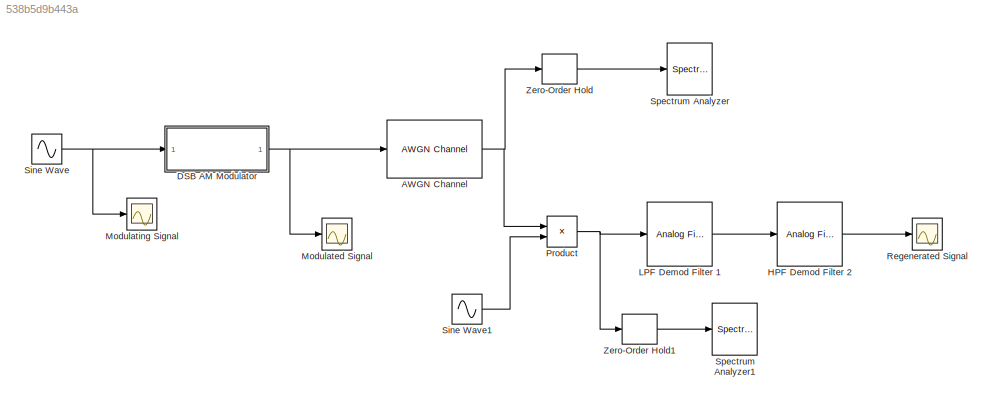
MODEL slx_538b5d9b443a
KIND model
CONFIG AbsTol = auto
CONFIG EnableMultiTasking = off
CONFIG FixedStep = auto
CONFIG MaxStep = auto
CONFIG MinStep = auto
CONFIG RelTol = 1e-3
CONFIG SampleTimeConstraint = Unconstrained
CONFIG Solver = VariableStepAuto
CONFIG SolverName = VariableStepAuto
CONFIG StartTime = 0.0
CONFIG StopTime = 1
BLOCK [Reference] AWGN Channel  REF=commchan3/AWGN
Channel
  Ports = [1, 1]
  SourceBlock = commchan3/AWGN\nChannel
  SourceProductBaseCode = CM
  SourceProductName = Communications System Toolbox
  SourceType = AWGN Channel
  UserDataPersistent = on
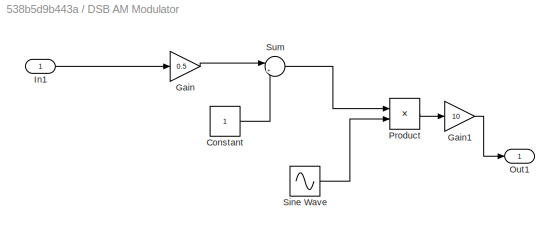
BLOCK [SubSystem] DSB AM Modulator
  Ports = [1, 1]
  RequestExecContextInheritance = off
BLOCK [Constant] DSB AM Modulator/Constant
BLOCK [Gain] DSB AM Modulator/Gain
  Gain = 0.5
  OutDataTypeStr = Inherit: Inherit via internal rule
  ParamDataTypeStr = Inherit: Inherit via internal rule
  SaturateOnIntegerOverflow = off
BLOCK [Gain] DSB AM Modulator/Gain1
  Gain = 10
  OutDataTypeStr = Inherit: Inherit via internal rule
  ParamDataTypeStr = Inherit: Inherit via internal rule
  SaturateOnIntegerOverflow = off
BLOCK [Inport] DSB AM Modulator/In1
  IconDisplay = Port number
BLOCK [Outport] DSB AM Modulator/Out1
  IconDisplay = Port number
BLOCK [Product] DSB AM Modulator/Product
  InputSameDT = off
  OutDataTypeStr = Inherit: Inherit via internal rule
  Ports = [2, 1]
  RndMeth = Floor
  SaturateOnIntegerOverflow = off
BLOCK [Sin] DSB AM Modulator/Sine Wave
  Frequency = 2*pi*20e3
  Ports = [0, 1]
  SampleTime = 0.25e-6
BLOCK [Sum] DSB AM Modulator/Sum
  IconShape = round
  InputSameDT = off
  Inputs = |++
  OutDataTypeStr = Inherit: Inherit via internal rule
  Ports = [2, 1]
  SaturateOnIntegerOverflow = off
BLOCK [Reference] HPF Demod Filter 2  REF=dsparch4/Analog
Filter Design
  Ports = [1, 1]
  SourceBlock = dsparch4/Analog\nFilter Design
  SourceProductBaseCode = DS
  SourceProductName = DSP System Toolbox
  SourceType = Analog Filter Design
BLOCK [Reference] LPF Demod Filter 1  REF=dsparch4/Analog
Filter Design
  Ports = [1, 1]
  SourceBlock = dsparch4/Analog\nFilter Design
  SourceProductBaseCode = DS
  SourceProductName = DSP System Toolbox
  SourceType = Analog Filter Design
BLOCK [Scope] Modulated Signal
  Floating = off
  NumInputPorts = 1
  Ports = [1]
  ScopeSpecificationString = Simulink.scopes.TimeScopeBlockCfg('CurrentConfiguration', extmgr.ConfigurationSet(extmgr.Configuration('Core','General UI',true),extmgr.Configuration('Core','Source UI',true),extmgr.Configuration('Sources','WiredSimulink',true,'DataLoggingVariableName','ScopeData1'),extmgr.Configuration('Visuals','Time Domain',true,'SerializedDisplays',{struct('MinYLimReal','-18.74518','MaxYLimReal','18.74518','YL...<+1414ch>
BLOCK [Scope] Modulating Signal
  Floating = off
  NumInputPorts = 1
  Ports = [1]
  ScopeSpecificationString = Simulink.scopes.TimeScopeBlockCfg('CurrentConfiguration', extmgr.ConfigurationSet(extmgr.Configuration('Core','General UI',true),extmgr.Configuration('Core','Source UI',true),extmgr.Configuration('Sources','WiredSimulink',true),extmgr.Configuration('Visuals','Time Domain',true,'SerializedDisplays',{struct('MinYLimReal','-1.25','MaxYLimReal','1.25','YLabelReal','','MinYLimMag','0.00000','MaxYLimMag...<+1342ch>
BLOCK [Product] Product
  InputSameDT = off
  OutDataTypeStr = Inherit: Inherit via internal rule
  Ports = [2, 1]
  RndMeth = Floor
  SaturateOnIntegerOverflow = off
BLOCK [Scope] Regenerated Signal
  Floating = off
  NumInputPorts = 1
  Ports = [1]
  ScopeSpecificationString = Simulink.scopes.TimeScopeBlockCfg('CurrentConfiguration', extmgr.ConfigurationSet(extmgr.Configuration('Core','General UI',true),extmgr.Configuration('Core','Source UI',true),extmgr.Configuration('Sources','WiredSimulink',true,'DataLoggingVariableName','ScopeData2'),extmgr.Configuration('Visuals','Time Domain',true,'SerializedDisplays',{struct('MinYLimReal','-2.81389','MaxYLimReal','2.78553','YLab...<+1396ch>
BLOCK [Sin] Sine Wave
  Frequency = 2*pi*500
  Ports = [0, 1]
  SampleTime = 0.25e-6
BLOCK [Sin] Sine Wave1
  Frequency = 2*pi*20e3
  Ports = [0, 1]
  SampleTime = 0.25e-6
BLOCK [SpectrumAnalyzer] Spectrum Analyzer
  Ports = [1]
  ScopeSpecificationString = spbscopes.SpectrumAnalyzerBlockCfg('CurrentConfiguration', extmgr.ConfigurationSet(extmgr.Configuration('Core','General UI',true),extmgr.Configuration('Core','Source UI',true),extmgr.Configuration('Sources','WiredSimulink',true),extmgr.Configuration('Visuals','Spectrum',true,'AxesProperties',struct('Color',{[0 0 0],[0 0 0]},'XColor',{[0.686274509803922 0.686274509803922 0.686274509803922],[0.68627...<+2389ch>
BLOCK [SpectrumAnalyzer] Spectrum Analyzer1
  Ports = [1]
  ScopeSpecificationString = spbscopes.SpectrumAnalyzerBlockCfg('CurrentConfiguration', extmgr.ConfigurationSet(extmgr.Configuration('Core','General UI',true),extmgr.Configuration('Core','Source UI',true),extmgr.Configuration('Sources','WiredSimulink',true),extmgr.Configuration('Visuals','Spectrum',true,'AxesProperties',struct('Color',{[0 0 0],[0 0 0]},'XColor',{[0.686274509803922 0.686274509803922 0.686274509803922],[0.68627...<+2477ch>
BLOCK [ZeroOrderHold] Zero-Order Hold
  SampleTime = -1
BLOCK [ZeroOrderHold] Zero-Order Hold1
  SampleTime = -1
NET AWGN Channel:1 -> Product:1, Zero-Order Hold:1
LINE DSB AM Modulator/Constant:1 -> DSB AM Modulator/Sum:2
LINE DSB AM Modulator/Gain1:1 -> DSB AM Modulator/Out1:1
LINE DSB AM Modulator/Gain:1 -> DSB AM Modulator/Sum:1
LINE DSB AM Modulator/In1:1 -> DSB AM Modulator/Gain:1
LINE DSB AM Modulator/Product:1 -> DSB AM Modulator/Gain1:1
LINE DSB AM Modulator/Sine Wave:1 -> DSB AM Modulator/Product:2
LINE DSB AM Modulator/Sum:1 -> DSB AM Modulator/Product:1
NET DSB AM Modulator:1 -> AWGN Channel:1, Modulated Signal:1
LINE HPF Demod Filter 2:1 -> Regenerated Signal:1
LINE LPF Demod Filter 1:1 -> HPF Demod Filter 2:1
NET Product:1 -> LPF Demod Filter 1:1, Zero-Order Hold1:1
LINE Sine Wave1:1 -> Product:2
NET Sine Wave:1 -> DSB AM Modulator:1, Modulating Signal:1
LINE Zero-Order Hold1:1 -> Spectrum Analyzer1:1
LINE Zero-Order Hold:1 -> Spectrum Analyzer:1
note: NET lines group one-source signal fan-out (src -> all destinations, sorted); 1:1 wires keep LINE
